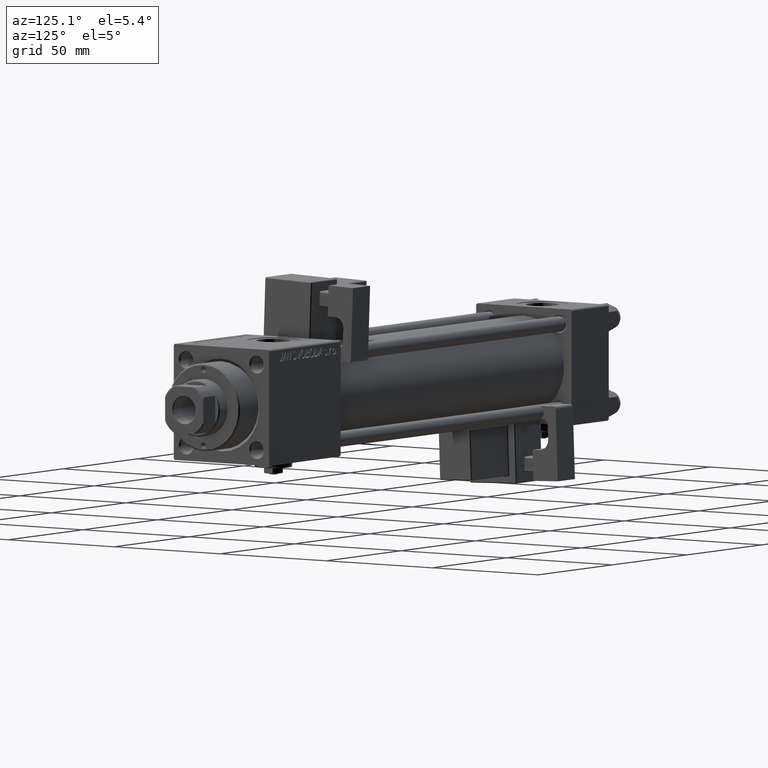
[diagram: clean part render]
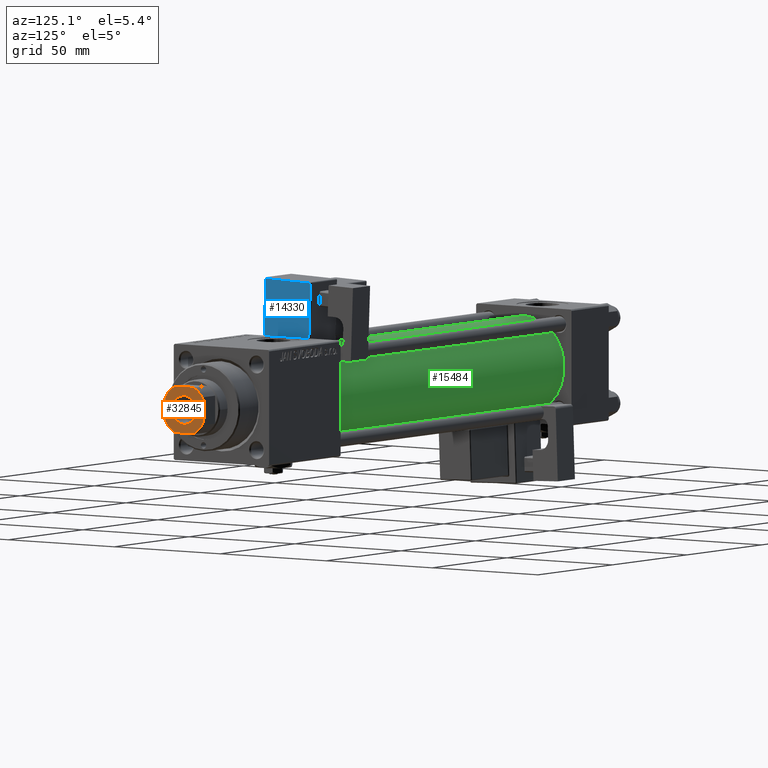
[diagram: same view with three faces highlighted in distinct colors, each labeled with its STEP entity id]
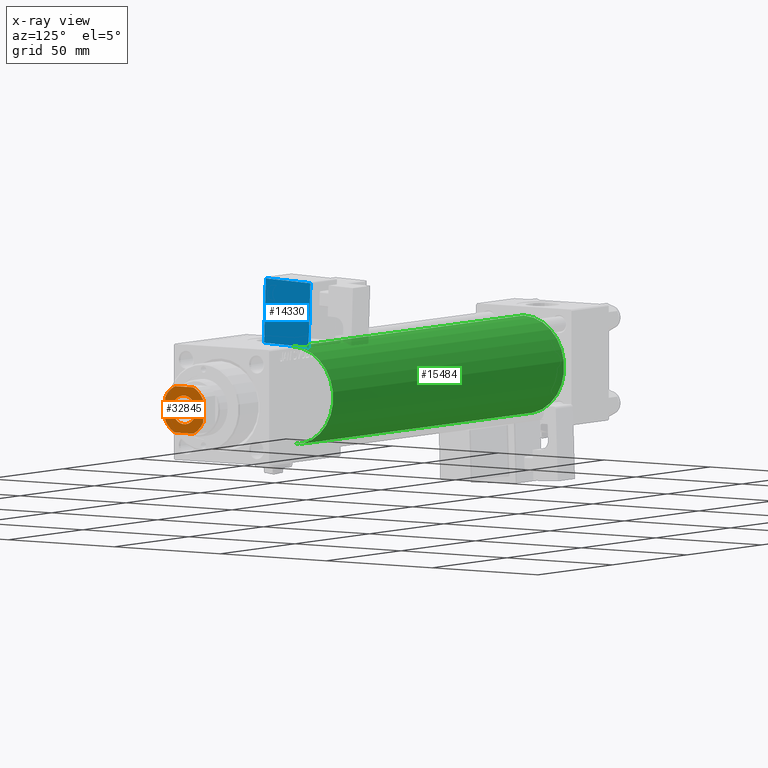
[diagram: x-ray of the same camera — body ghosted, the three highlighted faces saturated]
A machine part, auxiliary view with three faces highlighted in distinct colors.
The next image is the same camera in x-ray (body ghosted, the three faces saturated) — at least one of them is partly hidden behind the body in this view.
Their STEP definitions:

[orange] entity #32845 — the highlighted planar face has unit normal (1, 0, 0).
#2026 = DIRECTION ( 'NONE',  ( 1.000000000000000000, 0.000000000000000000, 0.000000000000000000 ) ) ;
#2129 = EDGE_LOOP ( 'NONE', ( #46541, #29748, #35370, #14083, #43484, #6088, #46065, #15622 ) ) ;
#2329 = CARTESIAN_POINT ( 'NONE',  ( 0.000000000000000000, 0.000000000000000000, 228.0000000000000000 ) ) ;
#2472 = CARTESIAN_POINT ( 'NONE',  ( 8.999999999999998224, -4.358898943540728155, 228.0000000000000000 ) ) ;
#2846 = EDGE_CURVE ( 'NONE', #18400, #11413, #44219, .T. ) ;
#4774 = VERTEX_POINT ( 'NONE', #2472 ) ;
#5986 = DIRECTION ( 'NONE',  ( 0.000000000000000000, -0.000000000000000000, -1.000000000000000000 ) ) ;
#6088 = ORIENTED_EDGE ( 'NONE', *, *, #34260, .T. ) ;
#6598 = AXIS2_PLACEMENT_3D ( 'NONE', #17933, #52618, #9191 ) ;
#6826 = CARTESIAN_POINT ( 'NONE',  ( 0.000000000000000000, 0.000000000000000000, 228.0000000000000000 ) ) ;
#8003 = CARTESIAN_POINT ( 'NONE',  ( -4.358898943540679305, -9.000000000000001776, 228.0000000000000000 ) ) ;
#8653 = CARTESIAN_POINT ( 'NONE',  ( 8.999999999999998224, 4.358898943540600257, 228.0000000000000000 ) ) ;
#9125 = DIRECTION ( 'NONE',  ( 1.000000000000000000, 0.000000000000000000, 0.000000000000000000 ) ) ;
#9191 = DIRECTION ( 'NONE',  ( 1.000000000000000000, 0.000000000000000000, 0.000000000000000000 ) ) ;
#9400 = CARTESIAN_POINT ( 'NONE',  ( 0.000000000000000000, 0.000000000000000000, 228.0000000000000000 ) ) ;
#9578 = CARTESIAN_POINT ( 'NONE',  ( -9.000000000000003553, 8.999999999999998224, 228.0000000000000000 ) ) ;
#9613 = VERTEX_POINT ( 'NONE', #20641 ) ;
#9652 = DIRECTION ( 'NONE',  ( 1.000000000000000000, 0.000000000000000000, 0.000000000000000000 ) ) ;
#9796 = CIRCLE ( 'NONE', #25141, 9.999999999999966249 ) ;
#9931 = CARTESIAN_POINT ( 'NONE',  ( 0.000000000000000000, 0.000000000000000000, 228.0000000000000000 ) ) ;
#10180 = EDGE_CURVE ( 'NONE', #41551, #47093, #35212, .T. ) ;
#11022 = ORIENTED_EDGE ( 'NONE', *, *, #23854, .T. ) ;
#11413 = VERTEX_POINT ( 'NONE', #34549 ) ;
#12272 = CIRCLE ( 'NONE', #42949, 10.00000000000000355 ) ;
#14083 = ORIENTED_EDGE ( 'NONE', *, *, #27505, .T. ) ;
#14838 = ORIENTED_EDGE ( 'NONE', *, *, #41853, .T. ) ;
#15622 = ORIENTED_EDGE ( 'NONE', *, *, #27185, .T. ) ;
#16743 = PLANE ( 'NONE',  #47315 ) ;
#17933 = CARTESIAN_POINT ( 'NONE',  ( 0.000000000000000000, 0.000000000000000000, 228.0000000000000000 ) ) ;
#18251 = DIRECTION ( 'NONE',  ( -0.000000000000000000, 0.000000000000000000, 1.000000000000000000 ) ) ;
#18400 = VERTEX_POINT ( 'NONE', #29487 ) ;
#18894 = AXIS2_PLACEMENT_3D ( 'NONE', #48865, #5986, #2026 ) ;
#20088 = DIRECTION ( 'NONE',  ( -0.000000000000000000, 0.000000000000000000, 1.000000000000000000 ) ) ;
#20364 = DIRECTION ( 'NONE',  ( 1.000000000000000000, 0.000000000000000000, 0.000000000000000000 ) ) ;
#20641 = CARTESIAN_POINT ( 'NONE',  ( -9.000000000000003553, 4.358898943540721937, 228.0000000000000000 ) ) ;
#20983 = CIRCLE ( 'NONE', #6598, 10.00000000000002309 ) ;
#23022 = CARTESIAN_POINT ( 'NONE',  ( 0.000000000000000000, 0.000000000000000000, 228.0000000000000000 ) ) ;
#23053 = DIRECTION ( 'NONE',  ( -1.000000000000000000, -0.000000000000000000, -0.000000000000000000 ) ) ;
#23820 = VECTOR ( 'NONE', #26776, 1000.000000000000000 ) ;
#23854 = EDGE_CURVE ( 'NONE', #30337, #27862, #31651, .T. ) ;
#24548 = CARTESIAN_POINT ( 'NONE',  ( 5.550000000000027356, 0.000000000000000000, 228.0000000000000000 ) ) ;
#24592 = VERTEX_POINT ( 'NONE', #8653 ) ;
#25141 = AXIS2_PLACEMENT_3D ( 'NONE', #23022, #18251, #40240 ) ;
#26776 = DIRECTION ( 'NONE',  ( 9.637352644315595243E-17, -1.000000000000000000, 0.000000000000000000 ) ) ;
#27185 = EDGE_CURVE ( 'NONE', #47093, #4774, #20983, .T. ) ;
#27505 = EDGE_CURVE ( 'NONE', #11413, #9613, #51640, .T. ) ;
#27568 = CARTESIAN_POINT ( 'NONE',  ( -9.000000000000003553, 8.999999999999998224, 228.0000000000000000 ) ) ;
#27862 = VERTEX_POINT ( 'NONE', #47969 ) ;
#29487 = CARTESIAN_POINT ( 'NONE',  ( 4.358898943540597593, 8.999999999999998224, 228.0000000000000000 ) ) ;
#29748 = ORIENTED_EDGE ( 'NONE', *, *, #36871, .T. ) ;
#30337 = VERTEX_POINT ( 'NONE', #24548 ) ;
#30563 = DIRECTION ( 'NONE',  ( -0.000000000000000000, 0.000000000000000000, 1.000000000000000000 ) ) ;
#30569 = EDGE_CURVE ( 'NONE', #9613, #31632, #48506, .T. ) ;
#31632 = VERTEX_POINT ( 'NONE', #48349 ) ;
#31651 = CIRCLE ( 'NONE', #44296, 5.550000000000027356 ) ;
#32221 = DIRECTION ( 'NONE',  ( 0.000000000000000000, -0.000000000000000000, -1.000000000000000000 ) ) ;
#32845 = ADVANCED_FACE ( 'NONE', ( #38172, #55389 ), #16743, .T. ) ;
#34260 = EDGE_CURVE ( 'NONE', #31632, #41551, #12272, .T. ) ;
#34549 = CARTESIAN_POINT ( 'NONE',  ( -4.358898943540729931, 8.999999999999998224, 228.0000000000000000 ) ) ;
#35212 = LINE ( 'NONE', #52410, #51086 ) ;
#35370 = ORIENTED_EDGE ( 'NONE', *, *, #2846, .T. ) ;
#36871 = EDGE_CURVE ( 'NONE', #24592, #18400, #9796, .T. ) ;
#38172 = FACE_BOUND ( 'NONE', #41910, .T. ) ;
#40075 = VECTOR ( 'NONE', #23053, 1000.000000000000000 ) ;
#40240 = DIRECTION ( 'NONE',  ( 1.000000000000000000, 0.000000000000000000, 0.000000000000000000 ) ) ;
#40533 = CARTESIAN_POINT ( 'NONE',  ( 4.358898943540723714, -9.000000000000001776, 228.0000000000000000 ) ) ;
#41551 = VERTEX_POINT ( 'NONE', #8003 ) ;
#41853 = EDGE_CURVE ( 'NONE', #27862, #30337, #55827, .T. ) ;
#41910 = EDGE_LOOP ( 'NONE', ( #11022, #14838 ) ) ;
#42949 = AXIS2_PLACEMENT_3D ( 'NONE', #2329, #20088, #46593 ) ;
#43484 = ORIENTED_EDGE ( 'NONE', *, *, #30569, .T. ) ;
#43875 = CARTESIAN_POINT ( 'NONE',  ( 8.999999999999996447, 8.999999999999998224, 228.0000000000000000 ) ) ;
#43953 = DIRECTION ( 'NONE',  ( 1.000000000000000000, 0.000000000000000000, 0.000000000000000000 ) ) ;
#44219 = LINE ( 'NONE', #27568, #40075 ) ;
#44296 = AXIS2_PLACEMENT_3D ( 'NONE', #6826, #32221, #20364 ) ;
#45333 = VECTOR ( 'NONE', #48941, 1000.000000000000000 ) ;
#46065 = ORIENTED_EDGE ( 'NONE', *, *, #10180, .T. ) ;
#46541 = ORIENTED_EDGE ( 'NONE', *, *, #50052, .T. ) ;
#46593 = DIRECTION ( 'NONE',  ( 1.000000000000000000, 0.000000000000000000, 0.000000000000000000 ) ) ;
#47093 = VERTEX_POINT ( 'NONE', #40533 ) ;
#47129 = AXIS2_PLACEMENT_3D ( 'NONE', #9400, #30563, #9125 ) ;
#47315 = AXIS2_PLACEMENT_3D ( 'NONE', #9931, #48294, #9652 ) ;
#47969 = CARTESIAN_POINT ( 'NONE',  ( -5.550000000000027356, 6.796789735267843321E-16, 228.0000000000000000 ) ) ;
#48294 = DIRECTION ( 'NONE',  ( -0.000000000000000000, 0.000000000000000000, 1.000000000000000000 ) ) ;
#48349 = CARTESIAN_POINT ( 'NONE',  ( -9.000000000000003553, -4.358898943540677529, 228.0000000000000000 ) ) ;
#48506 = LINE ( 'NONE', #9578, #23820 ) ;
#48865 = CARTESIAN_POINT ( 'NONE',  ( 0.000000000000000000, 0.000000000000000000, 228.0000000000000000 ) ) ;
#48941 = DIRECTION ( 'NONE',  ( -1.927470528863119049E-16, 1.000000000000000000, -0.000000000000000000 ) ) ;
#50052 = EDGE_CURVE ( 'NONE', #4774, #24592, #52617, .T. ) ;
#51086 = VECTOR ( 'NONE', #43953, 1000.000000000000000 ) ;
#51640 = CIRCLE ( 'NONE', #47129, 10.00000000000002309 ) ;
#52410 = CARTESIAN_POINT ( 'NONE',  ( -9.000000000000001776, -9.000000000000001776, 228.0000000000000000 ) ) ;
#52617 = LINE ( 'NONE', #43875, #45333 ) ;
#52618 = DIRECTION ( 'NONE',  ( -0.000000000000000000, 0.000000000000000000, 1.000000000000000000 ) ) ;
#55389 = FACE_OUTER_BOUND ( 'NONE', #2129, .T. ) ;
#55827 = CIRCLE ( 'NONE', #18894, 5.550000000000027356 ) ;

[blue] entity #14330 — the highlighted planar face has unit normal (-1, 0, 0).
#501 = EDGE_CURVE ( 'NONE', #50567, #11438, #26782, .T. ) ;
#1116 = DIRECTION ( 'NONE',  ( 0.000000000000000000, 1.000000000000000000, 0.000000000000000000 ) ) ;
#1131 = EDGE_CURVE ( 'NONE', #11438, #34124, #26586, .T. ) ;
#1194 = CARTESIAN_POINT ( 'NONE',  ( -8.750000000000003553, -12.25000000000000000, -1.000000000000000888 ) ) ;
#2271 = EDGE_LOOP ( 'NONE', ( #20780, #3042, #36065, #4251 ) ) ;
#3042 = ORIENTED_EDGE ( 'NONE', *, *, #501, .T. ) ;
#4251 = ORIENTED_EDGE ( 'NONE', *, *, #52521, .T. ) ;
#7171 = DIRECTION ( 'NONE',  ( -1.334402673828313093E-16, 0.000000000000000000, -1.000000000000000000 ) ) ;
#7731 = FACE_OUTER_BOUND ( 'NONE', #2271, .T. ) ;
#8302 = DIRECTION ( 'NONE',  ( 1.000000000000000000, 0.000000000000000000, -1.334402673828313093E-16 ) ) ;
#8757 = DIRECTION ( 'NONE',  ( -0.000000000000000000, -1.000000000000000000, -0.000000000000000000 ) ) ;
#8884 = VECTOR ( 'NONE', #10757, 1000.000000000000000 ) ;
#9661 = DIRECTION ( 'NONE',  ( -1.334402673828313093E-16, 0.000000000000000000, -1.000000000000000000 ) ) ;
#10757 = DIRECTION ( 'NONE',  ( 1.334402673828313093E-16, -0.000000000000000000, 1.000000000000000000 ) ) ;
#11438 = VERTEX_POINT ( 'NONE', #14769 ) ;
#12997 = LINE ( 'NONE', #30465, #51632 ) ;
#13445 = EDGE_CURVE ( 'NONE', #24948, #50567, #18669, .T. ) ;
#14330 = ADVANCED_FACE ( 'NONE', ( #7731 ), #24930, .F. ) ;
#14769 = CARTESIAN_POINT ( 'NONE',  ( -8.750000000000000000, -12.25000000000000000, 24.50000000000000000 ) ) ;
#18669 = LINE ( 'NONE', #40099, #8884 ) ;
#20703 = CARTESIAN_POINT ( 'NONE',  ( -8.750000000000000000, -33.75000000000000000, 25.00000000000000000 ) ) ;
#20780 = ORIENTED_EDGE ( 'NONE', *, *, #13445, .T. ) ;
#24930 = PLANE ( 'NONE',  #41322 ) ;
#24948 = VERTEX_POINT ( 'NONE', #53330 ) ;
#26586 = LINE ( 'NONE', #1194, #42797 ) ;
#26782 = LINE ( 'NONE', #34714, #50837 ) ;
#26807 = CARTESIAN_POINT ( 'NONE',  ( -8.750000000000000000, -33.25000000000000000, 24.50000000000000000 ) ) ;
#30465 = CARTESIAN_POINT ( 'NONE',  ( -8.750000000000003553, -33.75000000000000000, -0.5000000000000004441 ) ) ;
#34124 = VERTEX_POINT ( 'NONE', #41472 ) ;
#34714 = CARTESIAN_POINT ( 'NONE',  ( -8.750000000000000000, -33.75000000000000000, 24.50000000000000000 ) ) ;
#36065 = ORIENTED_EDGE ( 'NONE', *, *, #1131, .T. ) ;
#40099 = CARTESIAN_POINT ( 'NONE',  ( -8.750000000000000000, -33.25000000000000000, 25.00000000000000000 ) ) ;
#41322 = AXIS2_PLACEMENT_3D ( 'NONE', #20703, #8302, #7171 ) ;
#41472 = CARTESIAN_POINT ( 'NONE',  ( -8.750000000000003553, -12.25000000000000000, -0.5000000000000001110 ) ) ;
#42797 = VECTOR ( 'NONE', #9661, 1000.000000000000000 ) ;
#50567 = VERTEX_POINT ( 'NONE', #26807 ) ;
#50837 = VECTOR ( 'NONE', #1116, 1000.000000000000000 ) ;
#51632 = VECTOR ( 'NONE', #8757, 1000.000000000000000 ) ;
#52521 = EDGE_CURVE ( 'NONE', #34124, #24948, #12997, .T. ) ;
#53330 = CARTESIAN_POINT ( 'NONE',  ( -8.750000000000003553, -33.25000000000000000, -0.5000000000000001110 ) ) ;

[green] entity #15484 — the highlighted cylindrical surface (partial cylindrical patch) has radius 19 mm, axis along (-1, -0, -0).
#2248 = CARTESIAN_POINT ( 'NONE',  ( 180.0000000000000000, -2.602085213965210642E-15, 0.000000000000000000 ) ) ;
#2325 = DIRECTION ( 'NONE',  ( 0.000000000000000000, 0.000000000000000000, 1.000000000000000000 ) ) ;
#2557 = EDGE_CURVE ( 'NONE', #12856, #42944, #53606, .T. ) ;
#2974 = VERTEX_POINT ( 'NONE', #25001 ) ;
#6272 = FACE_OUTER_BOUND ( 'NONE', #31349, .T. ) ;
#9466 = CARTESIAN_POINT ( 'NONE',  ( 24.99999999999999289, -2.602085213965210642E-15, 19.00000000000000000 ) ) ;
#12317 = DIRECTION ( 'NONE',  ( -1.000000000000000000, -0.000000000000000000, -0.000000000000000000 ) ) ;
#12356 = ORIENTED_EDGE ( 'NONE', *, *, #37396, .F. ) ;
#12856 = VERTEX_POINT ( 'NONE', #29904 ) ;
#13903 = VECTOR ( 'NONE', #48625, 1000.000000000000000 ) ;
#15484 = ADVANCED_FACE ( 'NONE', ( #6272 ), #23470, .T. ) ;
#17895 = CARTESIAN_POINT ( 'NONE',  ( 180.0000000000000000, -2.752562955852396712E-16, -19.00000000000000000 ) ) ;
#17937 = VECTOR ( 'NONE', #12317, 1000.000000000000000 ) ;
#18416 = EDGE_CURVE ( 'NONE', #2974, #55283, #20779, .T. ) ;
#20427 = CARTESIAN_POINT ( 'NONE',  ( 180.0000000000000000, -2.602085213965210642E-15, 19.00000000000000000 ) ) ;
#20779 = CIRCLE ( 'NONE', #30687, 19.00000000000000000 ) ;
#23470 = CYLINDRICAL_SURFACE ( 'NONE', #49452, 19.00000000000000000 ) ;
#23880 = AXIS2_PLACEMENT_3D ( 'NONE', #2248, #36655, #53864 ) ;
#24598 = ORIENTED_EDGE ( 'NONE', *, *, #29151, .T. ) ;
#24824 = ORIENTED_EDGE ( 'NONE', *, *, #18416, .T. ) ;
#25001 = CARTESIAN_POINT ( 'NONE',  ( 24.99999999999999289, -2.752562955852396712E-16, -19.00000000000000000 ) ) ;
#29151 = EDGE_CURVE ( 'NONE', #12856, #2974, #39326, .T. ) ;
#29904 = CARTESIAN_POINT ( 'NONE',  ( 180.0000000000000000, -2.752562955852396712E-16, -19.00000000000000000 ) ) ;
#30687 = AXIS2_PLACEMENT_3D ( 'NONE', #48082, #48640, #52872 ) ;
#31349 = EDGE_LOOP ( 'NONE', ( #34616, #24598, #24824, #12356 ) ) ;
#31947 = CARTESIAN_POINT ( 'NONE',  ( 180.0000000000000000, -2.602085213965210642E-15, 0.000000000000000000 ) ) ;
#34616 = ORIENTED_EDGE ( 'NONE', *, *, #2557, .F. ) ;
#36655 = DIRECTION ( 'NONE',  ( 1.000000000000000000, 0.000000000000000000, 0.000000000000000000 ) ) ;
#37396 = EDGE_CURVE ( 'NONE', #42944, #55283, #50970, .T. ) ;
#38552 = CARTESIAN_POINT ( 'NONE',  ( 180.0000000000000000, -2.602085213965210642E-15, 19.00000000000000000 ) ) ;
#39326 = LINE ( 'NONE', #17895, #13903 ) ;
#40969 = DIRECTION ( 'NONE',  ( -1.000000000000000000, -0.000000000000000000, -0.000000000000000000 ) ) ;
#42944 = VERTEX_POINT ( 'NONE', #20427 ) ;
#48082 = CARTESIAN_POINT ( 'NONE',  ( 24.99999999999999289, -2.602085213965210642E-15, 0.000000000000000000 ) ) ;
#48625 = DIRECTION ( 'NONE',  ( -1.000000000000000000, -0.000000000000000000, -0.000000000000000000 ) ) ;
#48640 = DIRECTION ( 'NONE',  ( 1.000000000000000000, -0.000000000000000000, 0.000000000000000000 ) ) ;
#49452 = AXIS2_PLACEMENT_3D ( 'NONE', #31947, #40969, #2325 ) ;
#50970 = LINE ( 'NONE', #38552, #17937 ) ;
#52872 = DIRECTION ( 'NONE',  ( 0.000000000000000000, 0.000000000000000000, 1.000000000000000000 ) ) ;
#53606 = CIRCLE ( 'NONE', #23880, 19.00000000000000000 ) ;
#53864 = DIRECTION ( 'NONE',  ( 0.000000000000000000, 0.000000000000000000, -1.000000000000000000 ) ) ;
#55283 = VERTEX_POINT ( 'NONE', #9466 ) ;